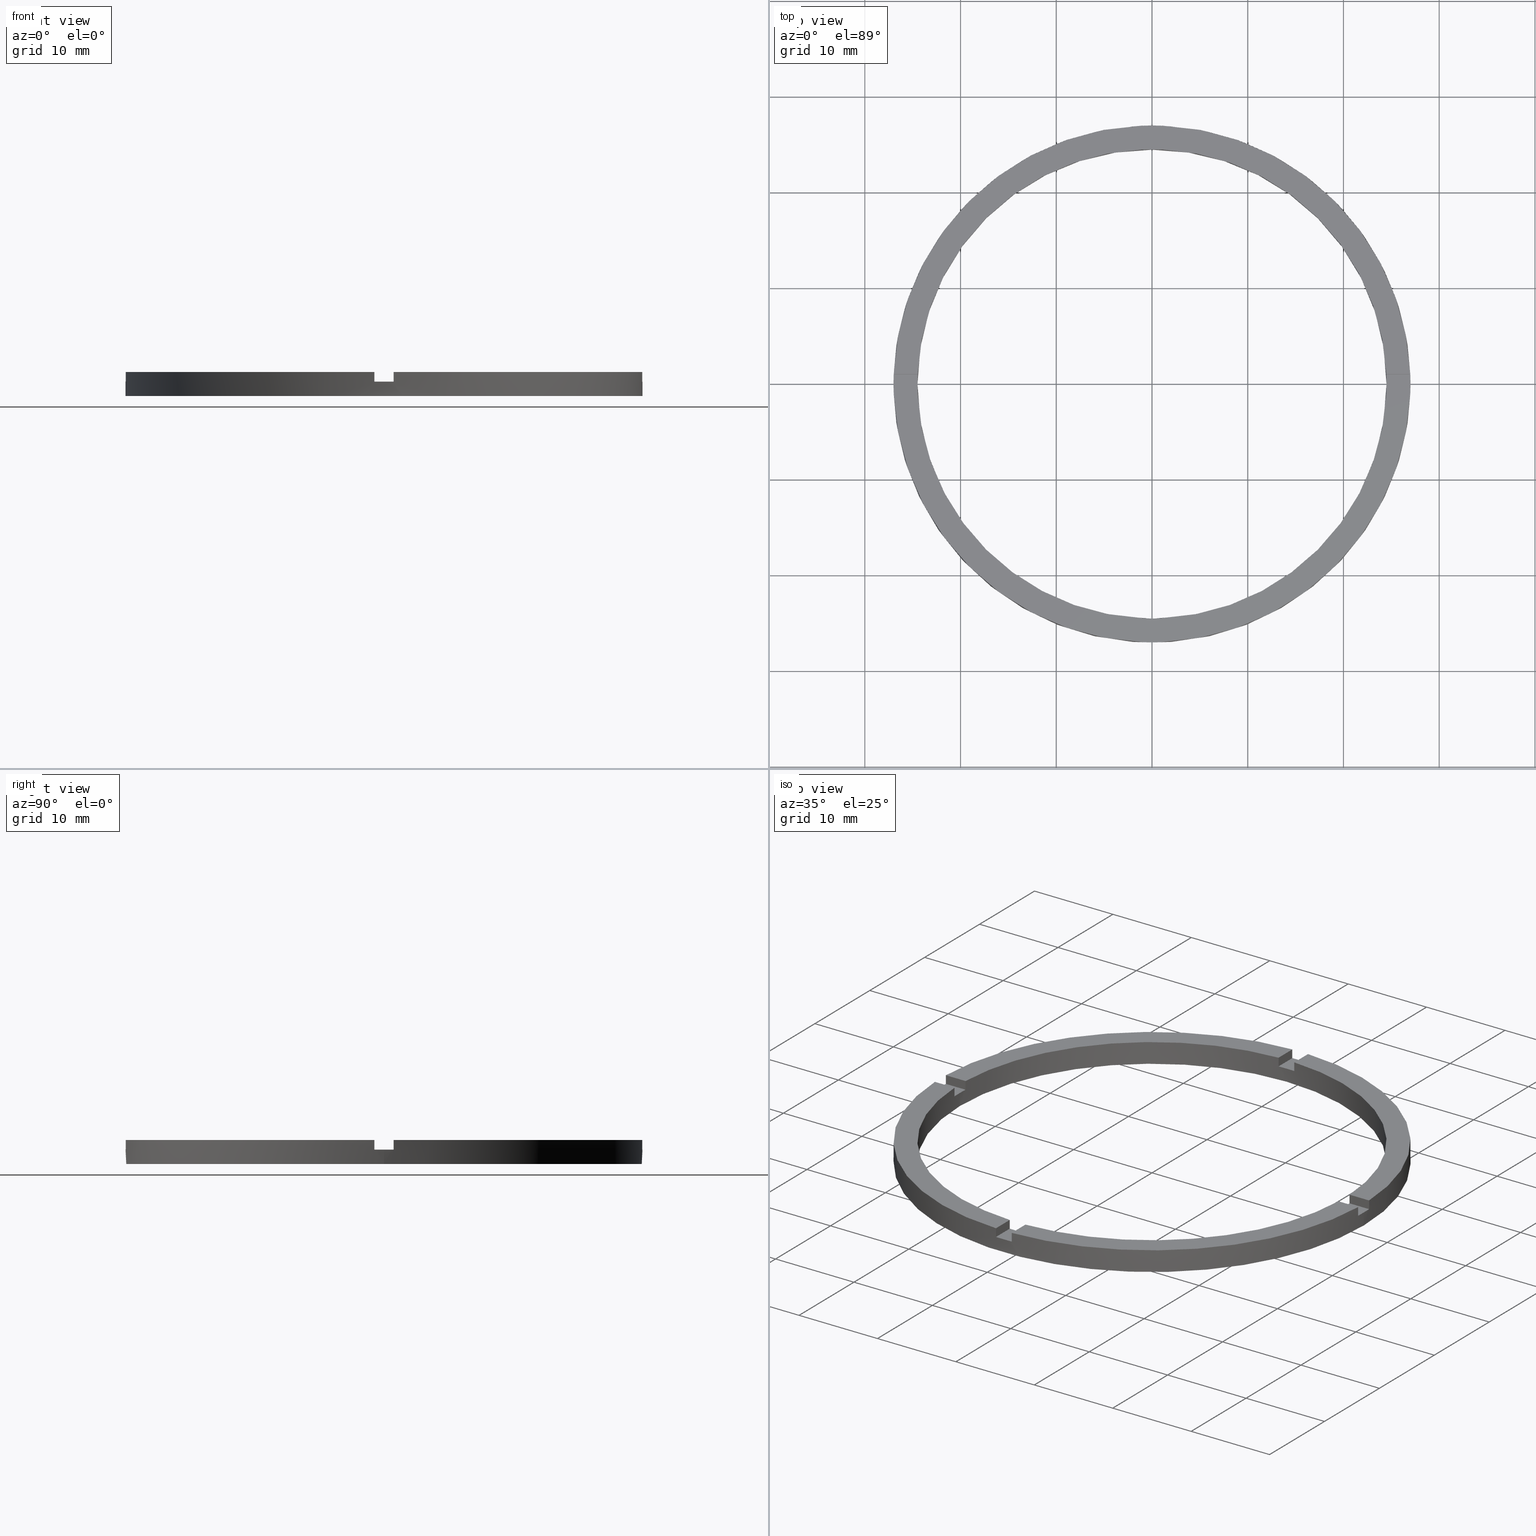
[diagram: canonical four-view strip — front | top / right | iso, engineering-drawing reading convention]
A machine part, canonical four-view strip (front | top / right | iso — engineering-drawing reading convention). The complete STEP part file that produces these views, byte-faithful:
ISO-10303-21;
HEADER;
FILE_DESCRIPTION (( 'STEP AP203' ),
    '1' );
FILE_NAME ('514113.step',
    '2024-12-26T02:38:45',
    ( 'MSI' ),
    ( '' ),
    'SwSTEP 2.0',
    'SolidWorks 2020',
    '' );
FILE_SCHEMA (( 'CONFIG_CONTROL_DESIGN' ));
ENDSEC;

DATA;
#1 = CARTESIAN_POINT ( 'NONE',  ( -24.47958332978729601, 0.9999999999999737987, 2.500000000000000000 ) ) ;
#2 = ORIENTED_EDGE ( 'NONE', *, *, #347, .F. ) ;
#3 = VERTEX_POINT ( 'NONE', #76 ) ;
#4 = CARTESIAN_POINT ( 'NONE',  ( 0.000000000000000000, 0.000000000000000000, 2.500000000000000000 ) ) ;
#5 = VERTEX_POINT ( 'NONE', #333 ) ;
#6 = CARTESIAN_POINT ( 'NONE',  ( 0.000000000000000000, 0.000000000000000000, 0.000000000000000000 ) ) ;
#7 = CARTESIAN_POINT ( 'NONE',  ( -1.000000000000026423, 26.98147512646407975, 2.500000000000000000 ) ) ;
#8 = CARTESIAN_POINT ( 'NONE',  ( 24.47958332978729956, 0.9999999999998427924, 2.500000000000000000 ) ) ;
#9 = ORIENTED_EDGE ( 'NONE', *, *, #588, .T. ) ;
#10 = ORIENTED_EDGE ( 'NONE', *, *, #378, .T. ) ;
#11 = ORIENTED_EDGE ( 'NONE', *, *, #317, .T. ) ;
#12 = CARTESIAN_POINT ( 'NONE',  ( -27.00000000000000000, 0.000000000000000000, 2.500000000000000000 ) ) ;
#13 = ORIENTED_EDGE ( 'NONE', *, *, #355, .T. ) ;
#14 = CARTESIAN_POINT ( 'NONE',  ( 0.000000000000000000, 0.000000000000000000, 2.500000000000000000 ) ) ;
#15 = ORIENTED_EDGE ( 'NONE', *, *, #700, .T. ) ;
#16 = CARTESIAN_POINT ( 'NONE',  ( -1.000000000000160094, -26.98147512646407620, 2.500000000000000000 ) ) ;
#17 = ADVANCED_FACE ( 'NONE', ( #561 ), #656, .T. ) ;
#18 = VERTEX_POINT ( 'NONE', #571 ) ;
#19 = ORIENTED_EDGE ( 'NONE', *, *, #266, .F. ) ;
#20 = CC_DESIGN_DATE_AND_TIME_ASSIGNMENT ( #221, #529, ( #334 ) ) ;
#21 = MECHANICAL_CONTEXT ( 'NONE', #580, 'mechanical' ) ;
#22 = VERTEX_POINT ( 'NONE', #744 ) ;
#23 = CARTESIAN_POINT ( 'NONE',  ( 24.47958332978729956, 0.9999999999998427924, 1.500000000000000000 ) ) ;
#24 = ORIENTED_EDGE ( 'NONE', *, *, #69, .T. ) ;
#25 = VERTEX_POINT ( 'NONE', #609 ) ;
#26 = ADVANCED_FACE ( 'NONE', ( #665 ), #114, .F. ) ;
#27 = ORIENTED_EDGE ( 'NONE', *, *, #388, .F. ) ;
#28 = EDGE_CURVE ( 'NONE', #682, #761, #154, .T. ) ;
#29 = DIRECTION ( 'NONE',  ( 1.000000000000000000, 4.336808689942018352E-17, 0.000000000000000000 ) ) ;
#30 = ORIENTED_EDGE ( 'NONE', *, *, #100, .T. ) ;
#31 = DIRECTION ( 'NONE',  ( 0.000000000000000000, -0.000000000000000000, 1.000000000000000000 ) ) ;
#32 = ORIENTED_EDGE ( 'NONE', *, *, #589, .F. ) ;
#33 = ORIENTED_EDGE ( 'NONE', *, *, #123, .F. ) ;
#34 = EDGE_CURVE ( 'NONE', #767, #765, #429, .T. ) ;
#35 = EDGE_LOOP ( 'NONE', ( #316, #11, #225, #311 ) ) ;
#36 = ADVANCED_FACE ( 'NONE', ( #150 ), #675, .F. ) ;
#37 = ORIENTED_EDGE ( 'NONE', *, *, #504, .T. ) ;
#38 = DIRECTION ( 'NONE',  ( 1.301042606982605567E-16, -1.000000000000000000, 0.000000000000000000 ) ) ;
#39 = PRODUCT_DEFINITION_FORMATION_WITH_SPECIFIED_SOURCE ( '�κ�', '', #337, .NOT_KNOWN. ) ;
#40 = ORIENTED_EDGE ( 'NONE', *, *, #34, .T. ) ;
#41 = EDGE_CURVE ( 'NONE', #81, #520, #416, .T. ) ;
#42 = ORIENTED_EDGE ( 'NONE', *, *, #649, .F. ) ;
#43 = DIRECTION ( 'NONE',  ( -1.000000000000000000, -4.336808689942017120E-17, -0.000000000000000000 ) ) ;
#44 = DIRECTION ( 'NONE',  ( 1.000000000000000000, 0.000000000000000000, -0.000000000000000000 ) ) ;
#45 = ORIENTED_EDGE ( 'NONE', *, *, #700, .F. ) ;
#46 =( GEOMETRIC_REPRESENTATION_CONTEXT ( 3 ) GLOBAL_UNCERTAINTY_ASSIGNED_CONTEXT ( ( #56 ) ) GLOBAL_UNIT_ASSIGNED_CONTEXT ( ( #657, #664, #756 ) ) REPRESENTATION_CONTEXT ( 'NONE', 'WORKASPACE' ) );
#47 = ORIENTED_EDGE ( 'NONE', *, *, #108, .T. ) ;
#48 = AXIS2_PLACEMENT_3D ( 'NONE', #248, #116, #275 ) ;
#49 = PERSON_AND_ORGANIZATION_ROLE ( 'design_supplier' ) ;
#50 = ADVANCED_FACE ( 'NONE', ( #437 ), #107, .T. ) ;
#51 = CARTESIAN_POINT ( 'NONE',  ( 0.000000000000000000, 0.000000000000000000, 1.500000000000000000 ) ) ;
#52 = AXIS2_PLACEMENT_3D ( 'NONE', #780, #70, #477 ) ;
#53 = DIRECTION ( 'NONE',  ( -1.301042606982605567E-16, 1.000000000000000000, 0.000000000000000000 ) ) ;
#54 = EDGE_CURVE ( 'NONE', #434, #279, #671, .T. ) ;
#55 = DIRECTION ( 'NONE',  ( -0.000000000000000000, -0.000000000000000000, -1.000000000000000000 ) ) ;
#56 = UNCERTAINTY_MEASURE_WITH_UNIT (LENGTH_MEASURE( 1.000000000000000082E-05 ), #657, 'distance_accuracy_value', 'NONE');
#57 = DIRECTION ( 'NONE',  ( 1.000000000000000000, 0.000000000000000000, 0.000000000000000000 ) ) ;
#58 = EDGE_CURVE ( 'NONE', #22, #308, #663, .T. ) ;
#59 = AXIS2_PLACEMENT_3D ( 'NONE', #393, #395, #635 ) ;
#60 = DIRECTION ( 'NONE',  ( 0.000000000000000000, 0.000000000000000000, 1.000000000000000000 ) ) ;
#61 = DIRECTION ( 'NONE',  ( 0.000000000000000000, 0.000000000000000000, 1.000000000000000000 ) ) ;
#62 = CARTESIAN_POINT ( 'NONE',  ( -17.00000000000018474, -1.000000000000024869, 1.500000000000000000 ) ) ;
#63 = DIRECTION ( 'NONE',  ( 0.000000000000000000, 1.000000000000000000, 0.000000000000000000 ) ) ;
#64 = DIRECTION ( 'NONE',  ( 1.000000000000000000, 0.000000000000000000, 0.000000000000000000 ) ) ;
#65 = DIRECTION ( 'NONE',  ( -1.000000000000000000, -4.336808689942017120E-17, -0.000000000000000000 ) ) ;
#66 = DIRECTION ( 'NONE',  ( -0.000000000000000000, 0.000000000000000000, 1.000000000000000000 ) ) ;
#67 = SECURITY_CLASSIFICATION ( '', '', #391 ) ;
#68 = DIRECTION ( 'NONE',  ( -0.000000000000000000, -0.000000000000000000, -1.000000000000000000 ) ) ;
#69 = EDGE_CURVE ( 'NONE', #761, #426, #421, .T. ) ;
#70 = DIRECTION ( 'NONE',  ( -4.336808689942017120E-17, 1.000000000000000000, 0.000000000000000000 ) ) ;
#71 = PLANE ( 'NONE',  #450 ) ;
#72 = AXIS2_PLACEMENT_3D ( 'NONE', #418, #159, #512 ) ;
#73 = PERSON_AND_ORGANIZATION_ROLE ( 'design_owner' ) ;
#74 = EDGE_CURVE ( 'NONE', #237, #239, #151, .T. ) ;
#75 = ADVANCED_FACE ( 'NONE', ( #130, #401 ), #367, .F. ) ;
#76 = CARTESIAN_POINT ( 'NONE',  ( 27.00000000000000000, 3.306546357697853733E-15, 0.000000000000000000 ) ) ;
#77 = CARTESIAN_POINT ( 'NONE',  ( 0.000000000000000000, 0.000000000000000000, 1.500000000000000000 ) ) ;
#78 = CARTESIAN_POINT ( 'NONE',  ( 0.000000000000000000, 0.000000000000000000, 1.500000000000000000 ) ) ;
#79 = AXIS2_PLACEMENT_3D ( 'NONE', #640, #270, #264 ) ;
#80 = DIRECTION ( 'NONE',  ( -1.000000000000000000, -1.301042606982605567E-16, 0.000000000000000000 ) ) ;
#81 = VERTEX_POINT ( 'NONE', #241 ) ;
#82 = ORIENTED_EDGE ( 'NONE', *, *, #649, .T. ) ;
#83 = DIRECTION ( 'NONE',  ( 0.000000000000000000, 0.000000000000000000, 1.000000000000000000 ) ) ;
#84 = CARTESIAN_POINT ( 'NONE',  ( -1.000000000000026423, 26.98147512646407975, 1.500000000000000000 ) ) ;
#85 = EDGE_LOOP ( 'NONE', ( #508, #247, #505, #538, #33, #277 ) ) ;
#86 = PERSON_AND_ORGANIZATION ( #559, #489 ) ;
#87 = CARTESIAN_POINT ( 'NONE',  ( 0.9999999999998397948, -24.47958332978729956, 1.500000000000000000 ) ) ;
#88 = CARTESIAN_POINT ( 'NONE',  ( -1.000000000000026423, 17.00000000000000000, 1.500000000000000000 ) ) ;
#89 = APPROVAL_ROLE ( '' ) ;
#90 = LOCAL_TIME ( 10, 38, 45.00000000000000000, #369 ) ;
#91 = DIRECTION ( 'NONE',  ( 0.000000000000000000, -0.000000000000000000, 1.000000000000000000 ) ) ;
#92 = PERSON_AND_ORGANIZATION_ROLE ( 'classification_officer' ) ;
#93 = APPROVAL_DATE_TIME ( #614, #683 ) ;
#94 = CC_DESIGN_SECURITY_CLASSIFICATION ( #67, ( #39 ) ) ;
#95 = CALENDAR_DATE ( 2024, 26, 12 ) ;
#96 = CARTESIAN_POINT ( 'NONE',  ( -17.00000000000018474, 0.9999999999999751310, 1.500000000000000000 ) ) ;
#97 = DIRECTION ( 'NONE',  ( 0.000000000000000000, 0.000000000000000000, 1.000000000000000000 ) ) ;
#98 = LOCAL_TIME ( 10, 38, 45.00000000000000000, #623 ) ;
#99 = PERSON_AND_ORGANIZATION ( #559, #489 ) ;
#100 = EDGE_CURVE ( 'NONE', #760, #484, #144, .T. ) ;
#101 = CALENDAR_DATE ( 2024, 26, 12 ) ;
#102 = DIRECTION ( 'NONE',  ( 1.000000000000000000, 0.000000000000000000, 0.000000000000000000 ) ) ;
#103 = CARTESIAN_POINT ( 'NONE',  ( 24.50000000000000000, 3.000384657911015469E-15, 0.000000000000000000 ) ) ;
#104 = AXIS2_PLACEMENT_3D ( 'NONE', #698, #398, #548 ) ;
#105 = PLANE ( 'NONE',  #586 ) ;
#106 = PLANE ( 'NONE',  #542 ) ;
#107 = PLANE ( 'NONE',  #460 ) ;
#108 = EDGE_CURVE ( 'NONE', #462, #217, #406, .T. ) ;
#109 = EDGE_CURVE ( 'NONE', #239, #434, #424, .T. ) ;
#110 = CARTESIAN_POINT ( 'NONE',  ( -24.47958332978729601, -1.000000000000026201, 2.500000000000000000 ) ) ;
#111 = CARTESIAN_POINT ( 'NONE',  ( -24.47958332978729601, -1.000000000000026201, 1.500000000000000000 ) ) ;
#112 = DIRECTION ( 'NONE',  ( 1.000000000000000000, 0.000000000000000000, 0.000000000000000000 ) ) ;
#113 = CARTESIAN_POINT ( 'NONE',  ( 16.99999999999999645, -1.000000000000157652, 2.500000000000000000 ) ) ;
#114 = PLANE ( 'NONE',  #59 ) ;
#115 = AXIS2_PLACEMENT_3D ( 'NONE', #380, #610, #573 ) ;
#116 = DIRECTION ( 'NONE',  ( 0.000000000000000000, 0.000000000000000000, 1.000000000000000000 ) ) ;
#117 = DIRECTION ( 'NONE',  ( -0.000000000000000000, 0.000000000000000000, 1.000000000000000000 ) ) ;
#118 = CARTESIAN_POINT ( 'NONE',  ( 24.50000000000000000, 3.000384657911015469E-15, 2.500000000000000000 ) ) ;
#119 = ADVANCED_FACE ( 'NONE', ( #145 ), #318, .T. ) ;
#120 = DIRECTION ( 'NONE',  ( 1.000000000000000000, 0.000000000000000000, 0.000000000000000000 ) ) ;
#121 = AXIS2_PLACEMENT_3D ( 'NONE', #136, #475, #57 ) ;
#122 = CARTESIAN_POINT ( 'NONE',  ( -26.98147512646408330, 0.9999999999999733546, 2.500000000000000000 ) ) ;
#123 = EDGE_CURVE ( 'NONE', #742, #760, #408, .T. ) ;
#124 = CARTESIAN_POINT ( 'NONE',  ( 0.000000000000000000, 0.000000000000000000, 1.500000000000000000 ) ) ;
#125 = ADVANCED_FACE ( 'NONE', ( #139 ), #105, .T. ) ;
#126 = VECTOR ( 'NONE', #564, 1000.000000000000000 ) ;
#127 = CIRCLE ( 'NONE', #165, 27.00000000000000000 ) ;
#128 = EDGE_CURVE ( 'NONE', #462, #5, #129, .T. ) ;
#129 = LINE ( 'NONE', #629, #684 ) ;
#130 = FACE_OUTER_BOUND ( 'NONE', #516, .T. ) ;
#131 = VECTOR ( 'NONE', #390, 1000.000000000000000 ) ;
#132 = EDGE_CURVE ( 'NONE', #742, #291, #143, .T. ) ;
#133 = CYLINDRICAL_SURFACE ( 'NONE', #310, 27.00000000000000000 ) ;
#134 = CARTESIAN_POINT ( 'NONE',  ( 0.9999999999998386846, -17.00000000000018119, 1.500000000000000000 ) ) ;
#135 = VECTOR ( 'NONE', #686, 1000.000000000000000 ) ;
#136 = CARTESIAN_POINT ( 'NONE',  ( 0.000000000000000000, 0.000000000000000000, 1.500000000000000000 ) ) ;
#137 = FACE_OUTER_BOUND ( 'NONE', #353, .T. ) ;
#138 = CC_DESIGN_PERSON_AND_ORGANIZATION_ASSIGNMENT ( #99, #92, ( #67 ) ) ;
#139 = FACE_OUTER_BOUND ( 'NONE', #754, .T. ) ;
#140 = DIRECTION ( 'NONE',  ( -1.000000000000000000, -1.734723475976807341E-16, 0.000000000000000000 ) ) ;
#141 = LINE ( 'NONE', #775, #415 ) ;
#142 = PLANE ( 'NONE',  #48 ) ;
#143 = LINE ( 'NONE', #774, #166 ) ;
#144 = CIRCLE ( 'NONE', #423, 24.50000000000000000 ) ;
#145 = FACE_OUTER_BOUND ( 'NONE', #85, .T. ) ;
#146 = AXIS2_PLACEMENT_3D ( 'NONE', #77, #420, #181 ) ;
#147 = CARTESIAN_POINT ( 'NONE',  ( 0.000000000000000000, 0.000000000000000000, 1.500000000000000000 ) ) ;
#148 = VECTOR ( 'NONE', #160, 1000.000000000000000 ) ;
#149 = CARTESIAN_POINT ( 'NONE',  ( 0.000000000000000000, 0.000000000000000000, 2.500000000000000000 ) ) ;
#150 = FACE_OUTER_BOUND ( 'NONE', #674, .T. ) ;
#151 = LINE ( 'NONE', #772, #126 ) ;
#152 = DIRECTION ( 'NONE',  ( 1.000000000000000000, 0.000000000000000000, 0.000000000000000000 ) ) ;
#153 = EDGE_CURVE ( 'NONE', #239, #484, #168, .T. ) ;
#154 = LINE ( 'NONE', #348, #667 ) ;
#155 = DIRECTION ( 'NONE',  ( 0.000000000000000000, 0.000000000000000000, 1.000000000000000000 ) ) ;
#156 = LINE ( 'NONE', #7, #148 ) ;
#157 = ORIENTED_EDGE ( 'NONE', *, *, #432, .F. ) ;
#158 = PRODUCT_DEFINITION_SHAPE ( 'NONE', 'NONE',  #334 ) ;
#159 = DIRECTION ( 'NONE',  ( -1.734723475976807341E-16, 1.000000000000000000, 0.000000000000000000 ) ) ;
#160 = DIRECTION ( 'NONE',  ( -0.000000000000000000, -0.000000000000000000, -1.000000000000000000 ) ) ;
#161 = LINE ( 'NONE', #62, #660 ) ;
#162 = VERTEX_POINT ( 'NONE', #363 ) ;
#163 = VECTOR ( 'NONE', #232, 1000.000000000000000 ) ;
#164 = EDGE_LOOP ( 'NONE', ( #472, #169, #351, #466 ) ) ;
#165 = AXIS2_PLACEMENT_3D ( 'NONE', #590, #320, #711 ) ;
#166 = VECTOR ( 'NONE', #155, 1000.000000000000000 ) ;
#167 = ORIENTED_EDGE ( 'NONE', *, *, #28, .F. ) ;
#168 = LINE ( 'NONE', #261, #400 ) ;
#169 = ORIENTED_EDGE ( 'NONE', *, *, #523, .T. ) ;
#170 = CARTESIAN_POINT ( 'NONE',  ( 0.9999999999998397948, -24.47958332978729956, 2.500000000000000000 ) ) ;
#171 = CARTESIAN_POINT ( 'NONE',  ( 0.9999999999999735767, 26.98147512646408330, 2.500000000000000000 ) ) ;
#172 = LINE ( 'NONE', #122, #198 ) ;
#173 = LINE ( 'NONE', #576, #443 ) ;
#174 = EDGE_CURVE ( 'NONE', #25, #434, #672, .T. ) ;
#175 = CARTESIAN_POINT ( 'NONE',  ( 0.9999999999998397948, -24.47958332978729956, 2.500000000000000000 ) ) ;
#176 = LINE ( 'NONE', #12, #697 ) ;
#177 = DIRECTION ( 'NONE',  ( 1.000000000000000000, 0.000000000000000000, 0.000000000000000000 ) ) ;
#178 = VECTOR ( 'NONE', #642, 1000.000000000000000 ) ;
#179 = CARTESIAN_POINT ( 'NONE',  ( 27.00000000000000000, 3.306546357697853733E-15, 1.500000000000000000 ) ) ;
#180 = LINE ( 'NONE', #631, #182 ) ;
#181 = DIRECTION ( 'NONE',  ( 1.000000000000000000, 0.000000000000000000, 0.000000000000000000 ) ) ;
#182 = VECTOR ( 'NONE', #404, 1000.000000000000000 ) ;
#183 = AXIS2_PLACEMENT_3D ( 'NONE', #405, #495, #717 ) ;
#184 = VECTOR ( 'NONE', #267, 1000.000000000000000 ) ;
#185 = ADVANCED_FACE ( 'NONE', ( #658 ), #133, .T. ) ;
#186 = DIRECTION ( 'NONE',  ( 1.000000000000000000, 0.000000000000000000, -0.000000000000000000 ) ) ;
#187 = CIRCLE ( 'NONE', #645, 27.00000000000000000 ) ;
#188 = DIRECTION ( 'NONE',  ( 0.000000000000000000, 0.000000000000000000, 1.000000000000000000 ) ) ;
#189 = CIRCLE ( 'NONE', #327, 24.50000000000000000 ) ;
#190 = EDGE_CURVE ( 'NONE', #742, #162, #427, .T. ) ;
#191 = LINE ( 'NONE', #600, #178 ) ;
#192 = LINE ( 'NONE', #118, #693 ) ;
#193 = CARTESIAN_POINT ( 'NONE',  ( 0.9999999999998400169, -26.98147512646408686, 2.500000000000000000 ) ) ;
#194 = CIRCLE ( 'NONE', #386, 27.00000000000000000 ) ;
#195 = DIRECTION ( 'NONE',  ( 1.000000000000000000, 0.000000000000000000, 0.000000000000000000 ) ) ;
#196 = CIRCLE ( 'NONE', #625, 27.00000000000000000 ) ;
#197 = EDGE_CURVE ( 'NONE', #25, #515, #651, .T. ) ;
#198 = VECTOR ( 'NONE', #204, 1000.000000000000000 ) ;
#199 = LINE ( 'NONE', #510, #446 ) ;
#200 = CC_DESIGN_DATE_AND_TIME_ASSIGNMENT ( #615, #299, ( #67 ) ) ;
#201 = DIRECTION ( 'NONE',  ( 0.000000000000000000, -0.000000000000000000, 1.000000000000000000 ) ) ;
#202 = VECTOR ( 'NONE', #272, 1000.000000000000000 ) ;
#203 = ORIENTED_EDGE ( 'NONE', *, *, #630, .F. ) ;
#204 = DIRECTION ( 'NONE',  ( 0.000000000000000000, 0.000000000000000000, 1.000000000000000000 ) ) ;
#205 = FACE_OUTER_BOUND ( 'NONE', #35, .T. ) ;
#206 = EDGE_CURVE ( 'NONE', #558, #484, #161, .T. ) ;
#207 = ORIENTED_EDGE ( 'NONE', *, *, #565, .F. ) ;
#208 = LOCAL_TIME ( 10, 38, 45.00000000000000000, #470 ) ;
#209 = CIRCLE ( 'NONE', #695, 27.00000000000000000 ) ;
#210 = ORIENTED_EDGE ( 'NONE', *, *, #523, .F. ) ;
#211 = LOCAL_TIME ( 10, 38, 45.00000000000000000, #752 ) ;
#212 = CC_DESIGN_PERSON_AND_ORGANIZATION_ASSIGNMENT ( #486, #574, ( #334 ) ) ;
#213 = LINE ( 'NONE', #716, #713 ) ;
#214 = VERTEX_POINT ( 'NONE', #103 ) ;
#215 = CARTESIAN_POINT ( 'NONE',  ( 26.98147512646408686, 0.9999999999998427924, 2.500000000000000000 ) ) ;
#216 = LINE ( 'NONE', #16, #202 ) ;
#217 = VERTEX_POINT ( 'NONE', #602 ) ;
#218 = AXIS2_PLACEMENT_3D ( 'NONE', #371, #412, #619 ) ;
#219 = LINE ( 'NONE', #447, #451 ) ;
#220 = ORIENTED_EDGE ( 'NONE', *, *, #518, .T. ) ;
#221 = DATE_AND_TIME ( #730, #211 ) ;
#222 = ORIENTED_EDGE ( 'NONE', *, *, #496, .T. ) ;
#223 = ORIENTED_EDGE ( 'NONE', *, *, #572, .T. ) ;
#224 = PERSON_AND_ORGANIZATION ( #559, #489 ) ;
#225 = ORIENTED_EDGE ( 'NONE', *, *, #432, .T. ) ;
#226 = LOCAL_TIME ( 10, 38, 45.00000000000000000, #741 ) ;
#227 = ORIENTED_EDGE ( 'NONE', *, *, #108, .F. ) ;
#228 = CALENDAR_DATE ( 2024, 26, 12 ) ;
#229 = EDGE_LOOP ( 'NONE', ( #314, #563, #567, #231 ) ) ;
#230 = APPROVAL_DATE_TIME ( #482, #269 ) ;
#231 = ORIENTED_EDGE ( 'NONE', *, *, #197, .T. ) ;
#232 = DIRECTION ( 'NONE',  ( -1.301042606982605567E-16, 1.000000000000000000, -0.000000000000000000 ) ) ;
#233 = APPROVAL_STATUS ( 'not_yet_approved' ) ;
#234 = DIRECTION ( 'NONE',  ( 0.000000000000000000, 0.000000000000000000, 1.000000000000000000 ) ) ;
#235 = ORIENTED_EDGE ( 'NONE', *, *, #322, .F. ) ;
#236 = ORIENTED_EDGE ( 'NONE', *, *, #776, .F. ) ;
#237 = VERTEX_POINT ( 'NONE', #326 ) ;
#238 = EDGE_CURVE ( 'NONE', #296, #18, #678, .T. ) ;
#239 = VERTEX_POINT ( 'NONE', #110 ) ;
#240 = CARTESIAN_POINT ( 'NONE',  ( 0.000000000000000000, 0.000000000000000000, 2.500000000000000000 ) ) ;
#241 = CARTESIAN_POINT ( 'NONE',  ( 26.98147512646407620, -1.000000000000157208, 1.500000000000000000 ) ) ;
#242 = ORIENTED_EDGE ( 'NONE', *, *, #54, .F. ) ;
#243 = ORIENTED_EDGE ( 'NONE', *, *, #582, .T. ) ;
#244 = ORIENTED_EDGE ( 'NONE', *, *, #322, .T. ) ;
#245 = CARTESIAN_POINT ( 'NONE',  ( -1.000000000000161426, -17.00000000000018119, 1.500000000000000000 ) ) ;
#246 = EDGE_CURVE ( 'NONE', #214, #297, #654, .T. ) ;
#247 = ORIENTED_EDGE ( 'NONE', *, *, #724, .T. ) ;
#248 = CARTESIAN_POINT ( 'NONE',  ( 0.000000000000000000, 0.000000000000000000, 2.500000000000000000 ) ) ;
#249 = AXIS2_PLACEMENT_3D ( 'NONE', #771, #552, #670 ) ;
#250 = VERTEX_POINT ( 'NONE', #407 ) ;
#251 = ORIENTED_EDGE ( 'NONE', *, *, #123, .T. ) ;
#252 = VERTEX_POINT ( 'NONE', #506 ) ;
#253 = CARTESIAN_POINT ( 'NONE',  ( 0.9999999999999735767, 24.47958332978729601, 2.500000000000000000 ) ) ;
#254 = EDGE_CURVE ( 'NONE', #515, #22, #410, .T. ) ;
#255 = ORIENTED_EDGE ( 'NONE', *, *, #588, .F. ) ;
#256 = DIRECTION ( 'NONE',  ( -0.000000000000000000, -0.000000000000000000, -1.000000000000000000 ) ) ;
#257 = DIRECTION ( 'NONE',  ( -1.000000000000000000, 0.000000000000000000, 0.000000000000000000 ) ) ;
#258 = ORIENTED_EDGE ( 'NONE', *, *, #132, .F. ) ;
#259 = DIRECTION ( 'NONE',  ( 1.000000000000000000, 0.000000000000000000, 0.000000000000000000 ) ) ;
#260 = EDGE_LOOP ( 'NONE', ( #551, #430, #167, #222 ) ) ;
#261 = CARTESIAN_POINT ( 'NONE',  ( -24.47958332978729601, -1.000000000000026201, 2.500000000000000000 ) ) ;
#262 = CARTESIAN_POINT ( 'NONE',  ( 0.000000000000000000, 0.000000000000000000, 2.500000000000000000 ) ) ;
#263 = CC_DESIGN_PERSON_AND_ORGANIZATION_ASSIGNMENT ( #611, #626, ( #39 ) ) ;
#264 = DIRECTION ( 'NONE',  ( 1.000000000000000000, 0.000000000000000000, 0.000000000000000000 ) ) ;
#265 = ADVANCED_BREP_SHAPE_REPRESENTATION ( '514113', ( #579, #409 ), #46 ) ;
#266 = EDGE_CURVE ( 'NONE', #763, #520, #662, .T. ) ;
#267 = DIRECTION ( 'NONE',  ( -0.000000000000000000, -0.000000000000000000, -1.000000000000000000 ) ) ;
#268 = CARTESIAN_POINT ( 'NONE',  ( 26.98147512646407620, -1.000000000000157208, 2.500000000000000000 ) ) ;
#269 = APPROVAL ( #422, 'δָ��' ) ;
#270 = DIRECTION ( 'NONE',  ( 0.000000000000000000, 0.000000000000000000, 1.000000000000000000 ) ) ;
#271 = DIRECTION ( 'NONE',  ( 1.000000000000000000, 1.734723475976807341E-16, 0.000000000000000000 ) ) ;
#272 = DIRECTION ( 'NONE',  ( 0.000000000000000000, 0.000000000000000000, 1.000000000000000000 ) ) ;
#273 = APPLICATION_CONTEXT ( 'configuration controlled 3d designs of mechanical parts and assemblies' ) ;
#274 = DIRECTION ( 'NONE',  ( 1.000000000000000000, 0.000000000000000000, 0.000000000000000000 ) ) ;
#275 = DIRECTION ( 'NONE',  ( 1.000000000000000000, 0.000000000000000000, -0.000000000000000000 ) ) ;
#276 = ORIENTED_EDGE ( 'NONE', *, *, #370, .F. ) ;
#277 = ORIENTED_EDGE ( 'NONE', *, *, #190, .T. ) ;
#278 = DIRECTION ( 'NONE',  ( -0.000000000000000000, -0.000000000000000000, -1.000000000000000000 ) ) ;
#279 = VERTEX_POINT ( 'NONE', #596 ) ;
#280 = CARTESIAN_POINT ( 'NONE',  ( 26.98147512646408686, 0.9999999999998427924, 2.500000000000000000 ) ) ;
#281 = VERTEX_POINT ( 'NONE', #703 ) ;
#282 = AXIS2_PLACEMENT_3D ( 'NONE', #731, #377, #514 ) ;
#283 = VERTEX_POINT ( 'NONE', #175 ) ;
#284 = ADVANCED_FACE ( 'NONE', ( #431 ), #636, .F. ) ;
#285 = ORIENTED_EDGE ( 'NONE', *, *, #375, .T. ) ;
#286 = CARTESIAN_POINT ( 'NONE',  ( 0.000000000000000000, 0.000000000000000000, 1.500000000000000000 ) ) ;
#287 = ORIENTED_EDGE ( 'NONE', *, *, #706, .F. ) ;
#288 = CARTESIAN_POINT ( 'NONE',  ( 0.9999999999999735767, 17.00000000000000000, 2.500000000000000000 ) ) ;
#289 = EDGE_LOOP ( 'NONE', ( #556, #541, #307, #745 ) ) ;
#290 = EDGE_CURVE ( 'NONE', #250, #3, #127, .T. ) ;
#291 = VERTEX_POINT ( 'NONE', #1 ) ;
#292 = ORIENTED_EDGE ( 'NONE', *, *, #206, .F. ) ;
#293 = ADVANCED_FACE ( 'NONE', ( #137 ), #676, .F. ) ;
#294 = DIRECTION ( 'NONE',  ( 0.000000000000000000, 0.000000000000000000, 1.000000000000000000 ) ) ;
#295 = ORIENTED_EDGE ( 'NONE', *, *, #28, .T. ) ;
#296 = VERTEX_POINT ( 'NONE', #778 ) ;
#297 = VERTEX_POINT ( 'NONE', #392 ) ;
#298 = ORIENTED_EDGE ( 'NONE', *, *, #74, .T. ) ;
#299 = DATE_TIME_ROLE ( 'classification_date' ) ;
#300 = ORIENTED_EDGE ( 'NONE', *, *, #496, .F. ) ;
#301 = ADVANCED_FACE ( 'NONE', ( #669 ), #766, .T. ) ;
#302 = AXIS2_PLACEMENT_3D ( 'NONE', #782, #605, #64 ) ;
#303 = EDGE_LOOP ( 'NONE', ( #755, #47, #566, #276 ) ) ;
#304 = EDGE_LOOP ( 'NONE', ( #235, #345, #285, #540, #236, #9, #210, #688, #287, #598, #300, #606 ) ) ;
#305 = ORIENTED_EDGE ( 'NONE', *, *, #528, .T. ) ;
#306 = ORIENTED_EDGE ( 'NONE', *, *, #396, .T. ) ;
#307 = ORIENTED_EDGE ( 'NONE', *, *, #54, .T. ) ;
#308 = VERTEX_POINT ( 'NONE', #87 ) ;
#309 = ORIENTED_EDGE ( 'NONE', *, *, #724, .F. ) ;
#310 = AXIS2_PLACEMENT_3D ( 'NONE', #555, #55, #597 ) ;
#311 = ORIENTED_EDGE ( 'NONE', *, *, #41, .F. ) ;
#312 = PLANE ( 'NONE',  #357 ) ;
#313 = ORIENTED_EDGE ( 'NONE', *, *, #706, .T. ) ;
#314 = ORIENTED_EDGE ( 'NONE', *, *, #254, .T. ) ;
#315 = DIRECTION ( 'NONE',  ( 1.301042606982605567E-16, -1.000000000000000000, 0.000000000000000000 ) ) ;
#316 = ORIENTED_EDGE ( 'NONE', *, *, #689, .F. ) ;
#317 = EDGE_CURVE ( 'NONE', #296, #544, #141, .T. ) ;
#318 = PLANE ( 'NONE',  #632 ) ;
#319 = CARTESIAN_POINT ( 'NONE',  ( 0.9999999999998386846, -17.00000000000018119, 2.500000000000000000 ) ) ;
#320 = DIRECTION ( 'NONE',  ( 0.000000000000000000, 0.000000000000000000, 1.000000000000000000 ) ) ;
#321 = DIRECTION ( 'NONE',  ( -0.000000000000000000, -0.000000000000000000, -1.000000000000000000 ) ) ;
#322 = EDGE_CURVE ( 'NONE', #487, #560, #666, .T. ) ;
#323 = DIRECTION ( 'NONE',  ( 0.000000000000000000, 0.000000000000000000, 1.000000000000000000 ) ) ;
#324 = CARTESIAN_POINT ( 'NONE',  ( -1.000000000000161426, -17.00000000000018119, 2.500000000000000000 ) ) ;
#325 = DIRECTION ( 'NONE',  ( -0.000000000000000000, -0.000000000000000000, -1.000000000000000000 ) ) ;
#326 = CARTESIAN_POINT ( 'NONE',  ( -26.98147512646407975, -1.000000000000026645, 2.500000000000000000 ) ) ;
#327 = AXIS2_PLACEMENT_3D ( 'NONE', #652, #31, #195 ) ;
#328 = DIRECTION ( 'NONE',  ( 1.000000000000000000, 4.336808689942018352E-17, 0.000000000000000000 ) ) ;
#329 = CARTESIAN_POINT ( 'NONE',  ( 0.000000000000000000, 0.000000000000000000, 1.500000000000000000 ) ) ;
#330 = DIRECTION ( 'NONE',  ( 1.000000000000000000, 1.734723475976807341E-16, -0.000000000000000000 ) ) ;
#331 = PLANE ( 'NONE',  #643 ) ;
#332 = DIRECTION ( 'NONE',  ( 4.336808689942018352E-17, -1.000000000000000000, 0.000000000000000000 ) ) ;
#333 = CARTESIAN_POINT ( 'NONE',  ( 0.9999999999999735767, 26.98147512646408330, 1.500000000000000000 ) ) ;
#334 = PRODUCT_DEFINITION ( 'δ֪', '', #39, #581 ) ;
#335 = CARTESIAN_POINT ( 'NONE',  ( 0.000000000000000000, 0.000000000000000000, 2.500000000000000000 ) ) ;
#336 = ADVANCED_FACE ( 'NONE', ( #419 ), #312, .F. ) ;
#337 = PRODUCT ( '514113', '514113', '', ( #21 ) ) ;
#338 = AXIS2_PLACEMENT_3D ( 'NONE', #6, #634, #570 ) ;
#339 = APPLICATION_PROTOCOL_DEFINITION ( 'international standard', 'config_control_design', 1994, #273 ) ;
#340 = DIRECTION ( 'NONE',  ( -0.000000000000000000, -1.000000000000000000, -0.000000000000000000 ) ) ;
#341 = CARTESIAN_POINT ( 'NONE',  ( 0.000000000000000000, 0.000000000000000000, 1.500000000000000000 ) ) ;
#342 = PLANE ( 'NONE',  #584 ) ;
#343 = AXIS2_PLACEMENT_3D ( 'NONE', #124, #234, #44 ) ;
#344 = CARTESIAN_POINT ( 'NONE',  ( -24.47958332978729601, 0.9999999999999737987, 1.500000000000000000 ) ) ;
#345 = ORIENTED_EDGE ( 'NONE', *, *, #440, .T. ) ;
#346 = CARTESIAN_POINT ( 'NONE',  ( -26.98147512646408330, 0.9999999999999733546, 2.500000000000000000 ) ) ;
#347 = EDGE_CURVE ( 'NONE', #281, #767, #156, .T. ) ;
#348 = CARTESIAN_POINT ( 'NONE',  ( 16.99999999999999289, 0.9999999999998423483, 2.500000000000000000 ) ) ;
#349 = EDGE_CURVE ( 'NONE', #547, #291, #680, .T. ) ;
#350 = ORIENTED_EDGE ( 'NONE', *, *, #109, .T. ) ;
#351 = ORIENTED_EDGE ( 'NONE', *, *, #355, .F. ) ;
#352 = ORIENTED_EDGE ( 'NONE', *, *, #565, .T. ) ;
#353 = EDGE_LOOP ( 'NONE', ( #32, #82, #757, #243, #227, #781, #499, #478, #258, #251, #306, #748 ) ) ;
#354 = APPROVAL ( #233, 'δָ��' ) ;
#355 = EDGE_CURVE ( 'NONE', #291, #725, #180, .T. ) ;
#356 = AXIS2_PLACEMENT_3D ( 'NONE', #749, #201, #177 ) ;
#357 = AXIS2_PLACEMENT_3D ( 'NONE', #594, #361, #53 ) ;
#358 = CARTESIAN_POINT ( 'NONE',  ( 0.000000000000000000, 0.000000000000000000, 0.000000000000000000 ) ) ;
#359 = DIRECTION ( 'NONE',  ( 0.000000000000000000, 0.000000000000000000, 1.000000000000000000 ) ) ;
#360 = DIRECTION ( 'NONE',  ( -0.000000000000000000, -0.000000000000000000, -1.000000000000000000 ) ) ;
#361 = DIRECTION ( 'NONE',  ( 1.000000000000000000, 1.301042606982605567E-16, 0.000000000000000000 ) ) ;
#362 = APPROVAL_DATE_TIME ( #618, #354 ) ;
#363 = CARTESIAN_POINT ( 'NONE',  ( -26.98147512646408330, 0.9999999999999733546, 1.500000000000000000 ) ) ;
#364 = DIRECTION ( 'NONE',  ( 1.000000000000000000, 0.000000000000000000, -0.000000000000000000 ) ) ;
#365 = DIRECTION ( 'NONE',  ( 1.000000000000000000, 0.000000000000000000, 0.000000000000000000 ) ) ;
#366 = AXIS2_PLACEMENT_3D ( 'NONE', #498, #414, #720 ) ;
#367 = PLANE ( 'NONE',  #183 ) ;
#368 = SHAPE_DEFINITION_REPRESENTATION ( #158, #265 ) ;
#369 = COORDINATED_UNIVERSAL_TIME_OFFSET ( 8, 0, .AHEAD. ) ;
#370 = EDGE_CURVE ( 'NONE', #5, #530, #705, .T. ) ;
#371 = CARTESIAN_POINT ( 'NONE',  ( 0.000000000000000000, 0.000000000000000000, 2.500000000000000000 ) ) ;
#372 = DIRECTION ( 'NONE',  ( 0.000000000000000000, 0.000000000000000000, 1.000000000000000000 ) ) ;
#373 = CARTESIAN_POINT ( 'NONE',  ( 0.000000000000000000, 0.000000000000000000, 1.500000000000000000 ) ) ;
#374 = ADVANCED_FACE ( 'NONE', ( #439 ), #142, .T. ) ;
#375 = EDGE_CURVE ( 'NONE', #3, #250, #721, .T. ) ;
#376 = CARTESIAN_POINT ( 'NONE',  ( 0.000000000000000000, 0.000000000000000000, 2.500000000000000000 ) ) ;
#377 = DIRECTION ( 'NONE',  ( -0.000000000000000000, -0.000000000000000000, -1.000000000000000000 ) ) ;
#378 = EDGE_CURVE ( 'NONE', #25, #308, #465, .T. ) ;
#379 = CARTESIAN_POINT ( 'NONE',  ( 16.99999999999999645, -1.000000000000157652, 1.500000000000000000 ) ) ;
#380 = CARTESIAN_POINT ( 'NONE',  ( 0.000000000000000000, 0.000000000000000000, 0.000000000000000000 ) ) ;
#381 = DIRECTION ( 'NONE',  ( -0.000000000000000000, -0.000000000000000000, -1.000000000000000000 ) ) ;
#382 = PRODUCT_RELATED_PRODUCT_CATEGORY ( 'detail', '', ( #337 ) ) ;
#383 = EDGE_CURVE ( 'NONE', #515, #279, #216, .T. ) ;
#384 = CARTESIAN_POINT ( 'NONE',  ( 0.000000000000000000, 0.000000000000000000, 2.500000000000000000 ) ) ;
#385 = AXIS2_PLACEMENT_3D ( 'NONE', #286, #621, #442 ) ;
#386 = AXIS2_PLACEMENT_3D ( 'NONE', #335, #648, #746 ) ;
#387 = DIRECTION ( 'NONE',  ( -0.000000000000000000, -0.000000000000000000, -1.000000000000000000 ) ) ;
#388 = EDGE_CURVE ( 'NONE', #237, #279, #194, .T. ) ;
#389 = ADVANCED_FACE ( 'NONE', ( #205 ), #71, .F. ) ;
#390 = DIRECTION ( 'NONE',  ( -0.000000000000000000, -1.000000000000000000, -0.000000000000000000 ) ) ;
#391 = SECURITY_CLASSIFICATION_LEVEL ( 'unclassified' ) ;
#392 = CARTESIAN_POINT ( 'NONE',  ( -24.50000000000000000, 0.000000000000000000, 0.000000000000000000 ) ) ;
#393 = CARTESIAN_POINT ( 'NONE',  ( 0.9999999999999735767, 17.00000000000000000, 1.500000000000000000 ) ) ;
#394 = EDGE_CURVE ( 'NONE', #547, #765, #213, .T. ) ;
#395 = DIRECTION ( 'NONE',  ( 1.000000000000000000, -0.000000000000000000, 0.000000000000000000 ) ) ;
#396 = EDGE_CURVE ( 'NONE', #760, #297, #455, .T. ) ;
#397 = DIRECTION ( 'NONE',  ( 1.000000000000000000, 0.000000000000000000, -0.000000000000000000 ) ) ;
#398 = DIRECTION ( 'NONE',  ( 0.000000000000000000, 0.000000000000000000, 1.000000000000000000 ) ) ;
#399 = CARTESIAN_POINT ( 'NONE',  ( -1.000000000000160094, -26.98147512646407620, 1.500000000000000000 ) ) ;
#400 = VECTOR ( 'NONE', #321, 1000.000000000000000 ) ;
#401 = FACE_BOUND ( 'NONE', #531, .T. ) ;
#402 = CARTESIAN_POINT ( 'NONE',  ( -1.000000000000160316, -24.47958332978728890, 2.500000000000000000 ) ) ;
#403 = CARTESIAN_POINT ( 'NONE',  ( -1.000000000000026423, 17.00000000000000000, 2.500000000000000000 ) ) ;
#404 = DIRECTION ( 'NONE',  ( -1.000000000000000000, -1.734723475976807341E-16, 0.000000000000000000 ) ) ;
#405 = CARTESIAN_POINT ( 'NONE',  ( 0.000000000000000000, 0.000000000000000000, 0.000000000000000000 ) ) ;
#406 = LINE ( 'NONE', #253, #435 ) ;
#407 = CARTESIAN_POINT ( 'NONE',  ( -27.00000000000000000, 0.000000000000000000, 0.000000000000000000 ) ) ;
#408 = CIRCLE ( 'NONE', #522, 24.50000000000000000 ) ;
#409 = AXIS2_PLACEMENT_3D ( 'NONE', #607, #83, #120 ) ;
#410 = CIRCLE ( 'NONE', #603, 27.00000000000000000 ) ;
#411 = VECTOR ( 'NONE', #315, 1000.000000000000000 ) ;
#412 = DIRECTION ( 'NONE',  ( 0.000000000000000000, 0.000000000000000000, 1.000000000000000000 ) ) ;
#413 = VECTOR ( 'NONE', #627, 1000.000000000000000 ) ;
#414 = DIRECTION ( 'NONE',  ( 0.000000000000000000, 0.000000000000000000, 1.000000000000000000 ) ) ;
#415 = VECTOR ( 'NONE', #453, 1000.000000000000000 ) ;
#416 = LINE ( 'NONE', #268, #687 ) ;
#417 = DIRECTION ( 'NONE',  ( 1.734723475976807341E-16, -1.000000000000000000, 0.000000000000000000 ) ) ;
#418 = CARTESIAN_POINT ( 'NONE',  ( -17.00000000000018474, 0.9999999999999751310, 1.500000000000000000 ) ) ;
#419 = FACE_OUTER_BOUND ( 'NONE', #769, .T. ) ;
#420 = DIRECTION ( 'NONE',  ( -0.000000000000000000, 0.000000000000000000, 1.000000000000000000 ) ) ;
#421 = LINE ( 'NONE', #8, #135 ) ;
#422 = APPROVAL_STATUS ( 'not_yet_approved' ) ;
#423 = AXIS2_PLACEMENT_3D ( 'NONE', #329, #372, #633 ) ;
#424 = CIRCLE ( 'NONE', #104, 24.50000000000000000 ) ;
#425 = CARTESIAN_POINT ( 'NONE',  ( -24.50000000000000000, 0.000000000000000000, 2.500000000000000000 ) ) ;
#426 = VERTEX_POINT ( 'NONE', #23 ) ;
#427 = LINE ( 'NONE', #96, #653 ) ;
#428 = ORIENTED_EDGE ( 'NONE', *, *, #266, .T. ) ;
#429 = LINE ( 'NONE', #88, #131 ) ;
#430 = ORIENTED_EDGE ( 'NONE', *, *, #582, .F. ) ;
#431 = FACE_OUTER_BOUND ( 'NONE', #469, .T. ) ;
#432 = EDGE_CURVE ( 'NONE', #544, #520, #463, .T. ) ;
#433 = DIRECTION ( 'NONE',  ( 1.000000000000000000, 0.000000000000000000, 0.000000000000000000 ) ) ;
#434 = VERTEX_POINT ( 'NONE', #575 ) ;
#435 = VECTOR ( 'NONE', #60, 1000.000000000000000 ) ;
#436 = ORIENTED_EDGE ( 'NONE', *, *, #290, .F. ) ;
#437 = FACE_OUTER_BOUND ( 'NONE', #747, .T. ) ;
#438 = ORIENTED_EDGE ( 'NONE', *, *, #246, .T. ) ;
#439 = FACE_OUTER_BOUND ( 'NONE', #260, .T. ) ;
#440 = EDGE_CURVE ( 'NONE', #487, #3, #191, .T. ) ;
#441 = CIRCLE ( 'NONE', #356, 27.00000000000000000 ) ;
#442 = DIRECTION ( 'NONE',  ( 1.000000000000000000, 0.000000000000000000, 0.000000000000000000 ) ) ;
#443 = VECTOR ( 'NONE', #387, 1000.000000000000000 ) ;
#444 = FACE_OUTER_BOUND ( 'NONE', #679, .T. ) ;
#445 = FACE_OUTER_BOUND ( 'NONE', #164, .T. ) ;
#446 = VECTOR ( 'NONE', #43, 1000.000000000000000 ) ;
#447 = CARTESIAN_POINT ( 'NONE',  ( 16.99999999999999645, -1.000000000000157652, 1.500000000000000000 ) ) ;
#448 = LINE ( 'NONE', #403, #694 ) ;
#449 = VECTOR ( 'NONE', #726, 1000.000000000000000 ) ;
#450 = AXIS2_PLACEMENT_3D ( 'NONE', #379, #332, #729 ) ;
#451 = VECTOR ( 'NONE', #29, 1000.000000000000000 ) ;
#452 = APPROVAL_ROLE ( '' ) ;
#453 = DIRECTION ( 'NONE',  ( 0.000000000000000000, 0.000000000000000000, 1.000000000000000000 ) ) ;
#454 = CYLINDRICAL_SURFACE ( 'NONE', #591, 24.50000000000000000 ) ;
#455 = LINE ( 'NONE', #425, #712 ) ;
#456 = LINE ( 'NONE', #288, #461 ) ;
#457 = FACE_OUTER_BOUND ( 'NONE', #503, .T. ) ;
#458 = VECTOR ( 'NONE', #381, 1000.000000000000000 ) ;
#459 = VECTOR ( 'NONE', #557, 1000.000000000000000 ) ;
#460 = AXIS2_PLACEMENT_3D ( 'NONE', #51, #91, #534 ) ;
#461 = VECTOR ( 'NONE', #751, 1000.000000000000000 ) ;
#462 = VERTEX_POINT ( 'NONE', #613 ) ;
#463 = LINE ( 'NONE', #113, #734 ) ;
#464 = ORIENTED_EDGE ( 'NONE', *, *, #317, .F. ) ;
#465 = CIRCLE ( 'NONE', #146, 24.50000000000000000 ) ;
#466 = ORIENTED_EDGE ( 'NONE', *, *, #349, .F. ) ;
#467 = APPROVAL_PERSON_ORGANIZATION ( #740, #354, #452 ) ;
#468 = LINE ( 'NONE', #280, #458 ) ;
#469 = EDGE_LOOP ( 'NONE', ( #295, #24, #45, #719 ) ) ;
#470 = COORDINATED_UNIVERSAL_TIME_OFFSET ( 8, 0, .AHEAD. ) ;
#471 = FACE_OUTER_BOUND ( 'NONE', #513, .T. ) ;
#472 = ORIENTED_EDGE ( 'NONE', *, *, #504, .F. ) ;
#473 = VECTOR ( 'NONE', #97, 1000.000000000000000 ) ;
#474 = ORIENTED_EDGE ( 'NONE', *, *, #518, .F. ) ;
#475 = DIRECTION ( 'NONE',  ( 0.000000000000000000, 0.000000000000000000, 1.000000000000000000 ) ) ;
#476 = ORIENTED_EDGE ( 'NONE', *, *, #238, .T. ) ;
#477 = DIRECTION ( 'NONE',  ( -1.000000000000000000, -4.336808689942017120E-17, 0.000000000000000000 ) ) ;
#478 = ORIENTED_EDGE ( 'NONE', *, *, #349, .T. ) ;
#479 = CARTESIAN_POINT ( 'NONE',  ( 0.000000000000000000, 0.000000000000000000, 1.500000000000000000 ) ) ;
#480 = ORIENTED_EDGE ( 'NONE', *, *, #383, .T. ) ;
#481 = CARTESIAN_POINT ( 'NONE',  ( 0.9999999999999735767, 26.98147512646408330, 2.500000000000000000 ) ) ;
#482 = DATE_AND_TIME ( #228, #226 ) ;
#483 = ORIENTED_EDGE ( 'NONE', *, *, #58, .F. ) ;
#484 = VERTEX_POINT ( 'NONE', #111 ) ;
#485 = DIRECTION ( 'NONE',  ( 0.000000000000000000, 0.000000000000000000, 1.000000000000000000 ) ) ;
#486 = PERSON_AND_ORGANIZATION ( #559, #489 ) ;
#487 = VERTEX_POINT ( 'NONE', #179 ) ;
#488 = DIRECTION ( 'NONE',  ( 0.000000000000000000, 0.000000000000000000, 1.000000000000000000 ) ) ;
#489 = ORGANIZATION ( 'δָ��', 'δָ��', '' ) ;
#490 = ORIENTED_EDGE ( 'NONE', *, *, #174, .F. ) ;
#491 = DIRECTION ( 'NONE',  ( 0.000000000000000000, 0.000000000000000000, 1.000000000000000000 ) ) ;
#492 = DIRECTION ( 'NONE',  ( 0.000000000000000000, 0.000000000000000000, 1.000000000000000000 ) ) ;
#493 = APPROVAL_PERSON_ORGANIZATION ( #224, #269, #517 ) ;
#494 = ORIENTED_EDGE ( 'NONE', *, *, #768, .T. ) ;
#495 = DIRECTION ( 'NONE',  ( 0.000000000000000000, 0.000000000000000000, 1.000000000000000000 ) ) ;
#496 = EDGE_CURVE ( 'NONE', #682, #530, #196, .T. ) ;
#497 = ORIENTED_EDGE ( 'NONE', *, *, #128, .T. ) ;
#498 = CARTESIAN_POINT ( 'NONE',  ( 0.000000000000000000, 0.000000000000000000, 2.500000000000000000 ) ) ;
#499 = ORIENTED_EDGE ( 'NONE', *, *, #394, .F. ) ;
#500 = CC_DESIGN_APPROVAL ( #354, ( #39 ) ) ;
#501 = ORIENTED_EDGE ( 'NONE', *, *, #238, .F. ) ;
#502 = DIRECTION ( 'NONE',  ( -1.000000000000000000, 0.000000000000000000, 0.000000000000000000 ) ) ;
#503 = EDGE_LOOP ( 'NONE', ( #546, #770, #13, #255 ) ) ;
#504 = EDGE_CURVE ( 'NONE', #281, #547, #448, .T. ) ;
#505 = ORIENTED_EDGE ( 'NONE', *, *, #206, .T. ) ;
#506 = CARTESIAN_POINT ( 'NONE',  ( -27.00000000000000000, 0.000000000000000000, 1.500000000000000000 ) ) ;
#507 = ADVANCED_FACE ( 'NONE', ( #457 ), #777, .F. ) ;
#508 = ORIENTED_EDGE ( 'NONE', *, *, #776, .T. ) ;
#509 = AXIS2_PLACEMENT_3D ( 'NONE', #341, #617, #568 ) ;
#510 = CARTESIAN_POINT ( 'NONE',  ( 16.99999999999999289, 0.9999999999998423483, 1.500000000000000000 ) ) ;
#511 = ORIENTED_EDGE ( 'NONE', *, *, #396, .F. ) ;
#512 = DIRECTION ( 'NONE',  ( -1.000000000000000000, -1.734723475976807341E-16, 0.000000000000000000 ) ) ;
#513 = EDGE_LOOP ( 'NONE', ( #298, #532, #292, #519 ) ) ;
#514 = DIRECTION ( 'NONE',  ( -1.000000000000000000, 0.000000000000000000, 0.000000000000000000 ) ) ;
#515 = VERTEX_POINT ( 'NONE', #399 ) ;
#516 = EDGE_LOOP ( 'NONE', ( #436, #753 ) ) ;
#517 = APPROVAL_ROLE ( '' ) ;
#518 = EDGE_CURVE ( 'NONE', #297, #214, #709, .T. ) ;
#519 = ORIENTED_EDGE ( 'NONE', *, *, #773, .F. ) ;
#520 = VERTEX_POINT ( 'NONE', #608 ) ;
#521 = CARTESIAN_POINT ( 'NONE',  ( 0.000000000000000000, 0.000000000000000000, 1.500000000000000000 ) ) ;
#522 = AXIS2_PLACEMENT_3D ( 'NONE', #147, #692, #592 ) ;
#523 = EDGE_CURVE ( 'NONE', #281, #725, #209, .T. ) ;
#524 = CARTESIAN_POINT ( 'NONE',  ( -26.98147512646407975, -1.000000000000026645, 2.500000000000000000 ) ) ;
#525 = EDGE_CURVE ( 'NONE', #81, #487, #187, .T. ) ;
#526 = CARTESIAN_POINT ( 'NONE',  ( 24.47958332978729956, 0.9999999999998427924, 2.500000000000000000 ) ) ;
#527 = ADVANCED_FACE ( 'NONE', ( #444 ), #454, .F. ) ;
#528 = EDGE_CURVE ( 'NONE', #763, #283, #727, .T. ) ;
#529 = DATE_TIME_ROLE ( 'creation_date' ) ;
#530 = VERTEX_POINT ( 'NONE', #481 ) ;
#531 = EDGE_LOOP ( 'NONE', ( #220, #438 ) ) ;
#532 = ORIENTED_EDGE ( 'NONE', *, *, #153, .T. ) ;
#533 = ORIENTED_EDGE ( 'NONE', *, *, #290, .T. ) ;
#534 = DIRECTION ( 'NONE',  ( 1.000000000000000000, 0.000000000000000000, -0.000000000000000000 ) ) ;
#535 = ORIENTED_EDGE ( 'NONE', *, *, #525, .F. ) ;
#536 = CLOSED_SHELL ( 'NONE', ( #527, #17, #569, #374, #644, #125, #75, #185, #293, #661, #507, #119, #336, #587, #668, #284, #389, #301, #36, #26, #50 ) ) ;
#537 = EDGE_LOOP ( 'NONE', ( #733, #244, #15, #42, #501, #562 ) ) ;
#538 = ORIENTED_EDGE ( 'NONE', *, *, #100, .F. ) ;
#539 = CC_DESIGN_APPROVAL ( #269, ( #334 ) ) ;
#540 = ORIENTED_EDGE ( 'NONE', *, *, #768, .F. ) ;
#541 = ORIENTED_EDGE ( 'NONE', *, *, #174, .T. ) ;
#542 = AXIS2_PLACEMENT_3D ( 'NONE', #262, #323, #364 ) ;
#543 = DIRECTION ( 'NONE',  ( 1.000000000000000000, 0.000000000000000000, -0.000000000000000000 ) ) ;
#544 = VERTEX_POINT ( 'NONE', #550 ) ;
#545 = EDGE_LOOP ( 'NONE', ( #764, #535, #759, #19, #685, #677, #480, #27, #762, #309, #494, #533 ) ) ;
#546 = ORIENTED_EDGE ( 'NONE', *, *, #190, .F. ) ;
#547 = VERTEX_POINT ( 'NONE', #638 ) ;
#548 = DIRECTION ( 'NONE',  ( 1.000000000000000000, 0.000000000000000000, 0.000000000000000000 ) ) ;
#549 = ORIENTED_EDGE ( 'NONE', *, *, #34, .F. ) ;
#550 = CARTESIAN_POINT ( 'NONE',  ( 24.47958332978728890, -1.000000000000157208, 2.500000000000000000 ) ) ;
#551 = ORIENTED_EDGE ( 'NONE', *, *, #622, .F. ) ;
#552 = DIRECTION ( 'NONE',  ( -1.000000000000000000, 0.000000000000000000, 0.000000000000000000 ) ) ;
#553 = ORIENTED_EDGE ( 'NONE', *, *, #737, .F. ) ;
#554 = ORIENTED_EDGE ( 'NONE', *, *, #153, .F. ) ;
#555 = CARTESIAN_POINT ( 'NONE',  ( 0.000000000000000000, 0.000000000000000000, 2.500000000000000000 ) ) ;
#556 = ORIENTED_EDGE ( 'NONE', *, *, #197, .F. ) ;
#557 = DIRECTION ( 'NONE',  ( -1.301042606982605567E-16, 1.000000000000000000, -0.000000000000000000 ) ) ;
#558 = VERTEX_POINT ( 'NONE', #593 ) ;
#559 = PERSON ( 'δָ��', 'δָ��', 'δָ��', ('δָ��'), ('δָ��'), ('δָ��') ) ;
#560 = VERTEX_POINT ( 'NONE', #708 ) ;
#561 = FACE_OUTER_BOUND ( 'NONE', #304, .T. ) ;
#562 = ORIENTED_EDGE ( 'NONE', *, *, #689, .T. ) ;
#563 = ORIENTED_EDGE ( 'NONE', *, *, #58, .T. ) ;
#564 = DIRECTION ( 'NONE',  ( 1.000000000000000000, 1.734723475976807341E-16, -0.000000000000000000 ) ) ;
#565 = EDGE_CURVE ( 'NONE', #283, #544, #704, .T. ) ;
#566 = ORIENTED_EDGE ( 'NONE', *, *, #622, .T. ) ;
#567 = ORIENTED_EDGE ( 'NONE', *, *, #378, .F. ) ;
#568 = DIRECTION ( 'NONE',  ( 1.000000000000000000, 0.000000000000000000, 0.000000000000000000 ) ) ;
#569 = ADVANCED_FACE ( 'NONE', ( #445 ), #106, .T. ) ;
#570 = DIRECTION ( 'NONE',  ( 1.000000000000000000, 0.000000000000000000, 0.000000000000000000 ) ) ;
#571 = CARTESIAN_POINT ( 'NONE',  ( 24.50000000000000000, 3.000384657911015469E-15, 1.500000000000000000 ) ) ;
#572 = EDGE_CURVE ( 'NONE', #283, #308, #707, .T. ) ;
#573 = DIRECTION ( 'NONE',  ( 1.000000000000000000, 0.000000000000000000, 0.000000000000000000 ) ) ;
#574 = PERSON_AND_ORGANIZATION_ROLE ( 'creator' ) ;
#575 = CARTESIAN_POINT ( 'NONE',  ( -1.000000000000160316, -24.47958332978728890, 2.500000000000000000 ) ) ;
#576 = CARTESIAN_POINT ( 'NONE',  ( 0.9999999999998400169, -26.98147512646408686, 2.500000000000000000 ) ) ;
#577 = DIRECTION ( 'NONE',  ( -0.000000000000000000, -0.000000000000000000, -1.000000000000000000 ) ) ;
#578 = AXIS2_PLACEMENT_3D ( 'NONE', #78, #294, #112 ) ;
#579 = MANIFOLD_SOLID_BREP ( '�г�-����1', #536 ) ;
#580 = APPLICATION_CONTEXT ( 'configuration controlled 3d designs of mechanical parts and assemblies' ) ;
#581 = DESIGN_CONTEXT ( 'detailed design', #273, 'design' ) ;
#582 = EDGE_CURVE ( 'NONE', #761, #217, #696, .T. ) ;
#583 = CARTESIAN_POINT ( 'NONE',  ( -1.000000000000026423, 24.47958332978729601, 1.500000000000000000 ) ) ;
#584 = AXIS2_PLACEMENT_3D ( 'NONE', #659, #80, #38 ) ;
#585 = APPROVAL_STATUS ( 'not_yet_approved' ) ;
#586 = AXIS2_PLACEMENT_3D ( 'NONE', #4, #714, #397 ) ;
#587 = ADVANCED_FACE ( 'NONE', ( #690 ), #342, .F. ) ;
#588 = EDGE_CURVE ( 'NONE', #162, #725, #172, .T. ) ;
#589 = EDGE_CURVE ( 'NONE', #18, #214, #192, .T. ) ;
#590 = CARTESIAN_POINT ( 'NONE',  ( 0.000000000000000000, 0.000000000000000000, 0.000000000000000000 ) ) ;
#591 = AXIS2_PLACEMENT_3D ( 'NONE', #149, #256, #502 ) ;
#592 = DIRECTION ( 'NONE',  ( 1.000000000000000000, 0.000000000000000000, 0.000000000000000000 ) ) ;
#593 = CARTESIAN_POINT ( 'NONE',  ( -26.98147512646407975, -1.000000000000026645, 1.500000000000000000 ) ) ;
#594 = CARTESIAN_POINT ( 'NONE',  ( 0.9999999999998386846, -17.00000000000018119, 1.500000000000000000 ) ) ;
#595 = DIRECTION ( 'NONE',  ( 0.000000000000000000, 0.000000000000000000, 1.000000000000000000 ) ) ;
#596 = CARTESIAN_POINT ( 'NONE',  ( -1.000000000000160094, -26.98147512646407620, 2.500000000000000000 ) ) ;
#597 = DIRECTION ( 'NONE',  ( -1.000000000000000000, 0.000000000000000000, 0.000000000000000000 ) ) ;
#598 = ORIENTED_EDGE ( 'NONE', *, *, #370, .T. ) ;
#599 = ORIENTED_EDGE ( 'NONE', *, *, #74, .F. ) ;
#600 = CARTESIAN_POINT ( 'NONE',  ( 27.00000000000000000, 3.306546357697853733E-15, 2.500000000000000000 ) ) ;
#601 = ORIENTED_EDGE ( 'NONE', *, *, #589, .T. ) ;
#602 = CARTESIAN_POINT ( 'NONE',  ( 0.9999999999999735767, 24.47958332978729601, 2.500000000000000000 ) ) ;
#603 = AXIS2_PLACEMENT_3D ( 'NONE', #373, #66, #259 ) ;
#604 = APPROVAL_PERSON_ORGANIZATION ( #86, #683, #89 ) ;
#605 = DIRECTION ( 'NONE',  ( 0.000000000000000000, 0.000000000000000000, 1.000000000000000000 ) ) ;
#606 = ORIENTED_EDGE ( 'NONE', *, *, #637, .T. ) ;
#607 = CARTESIAN_POINT ( 'NONE',  ( 0.000000000000000000, 0.000000000000000000, 0.000000000000000000 ) ) ;
#608 = CARTESIAN_POINT ( 'NONE',  ( 26.98147512646407620, -1.000000000000157208, 2.500000000000000000 ) ) ;
#609 = CARTESIAN_POINT ( 'NONE',  ( -1.000000000000160316, -24.47958332978728890, 1.500000000000000000 ) ) ;
#610 = DIRECTION ( 'NONE',  ( 0.000000000000000000, 0.000000000000000000, 1.000000000000000000 ) ) ;
#611 = PERSON_AND_ORGANIZATION ( #559, #489 ) ;
#612 = CARTESIAN_POINT ( 'NONE',  ( -24.50000000000000000, 0.000000000000000000, 1.500000000000000000 ) ) ;
#613 = CARTESIAN_POINT ( 'NONE',  ( 0.9999999999999735767, 24.47958332978729601, 1.500000000000000000 ) ) ;
#614 = DATE_AND_TIME ( #95, #90 ) ;
#615 = DATE_AND_TIME ( #101, #98 ) ;
#616 = PERSON_AND_ORGANIZATION ( #559, #489 ) ;
#617 = DIRECTION ( 'NONE',  ( 0.000000000000000000, 0.000000000000000000, 1.000000000000000000 ) ) ;
#618 = DATE_AND_TIME ( #681, #208 ) ;
#619 = DIRECTION ( 'NONE',  ( 1.000000000000000000, 0.000000000000000000, 0.000000000000000000 ) ) ;
#620 = CC_DESIGN_APPROVAL ( #683, ( #67 ) ) ;
#621 = DIRECTION ( 'NONE',  ( 0.000000000000000000, 0.000000000000000000, 1.000000000000000000 ) ) ;
#622 = EDGE_CURVE ( 'NONE', #217, #530, #456, .T. ) ;
#623 = COORDINATED_UNIVERSAL_TIME_OFFSET ( 8, 0, .AHEAD. ) ;
#624 = CC_DESIGN_PERSON_AND_ORGANIZATION_ASSIGNMENT ( #736, #73, ( #337 ) ) ;
#625 = AXIS2_PLACEMENT_3D ( 'NONE', #376, #188, #274 ) ;
#626 = PERSON_AND_ORGANIZATION_ROLE ( 'creator' ) ;
#627 = DIRECTION ( 'NONE',  ( 1.301042606982605567E-16, -1.000000000000000000, 0.000000000000000000 ) ) ;
#628 = AXIS2_PLACEMENT_3D ( 'NONE', #710, #325, #257 ) ;
#629 = CARTESIAN_POINT ( 'NONE',  ( 0.9999999999999735767, 17.00000000000000000, 1.500000000000000000 ) ) ;
#630 = EDGE_CURVE ( 'NONE', #462, #765, #189, .T. ) ;
#631 = CARTESIAN_POINT ( 'NONE',  ( -17.00000000000018474, 0.9999999999999751310, 2.500000000000000000 ) ) ;
#632 = AXIS2_PLACEMENT_3D ( 'NONE', #479, #359, #543 ) ;
#633 = DIRECTION ( 'NONE',  ( 1.000000000000000000, 0.000000000000000000, 0.000000000000000000 ) ) ;
#634 = DIRECTION ( 'NONE',  ( 0.000000000000000000, 0.000000000000000000, 1.000000000000000000 ) ) ;
#635 = DIRECTION ( 'NONE',  ( 0.000000000000000000, 0.000000000000000000, -1.000000000000000000 ) ) ;
#636 = PLANE ( 'NONE',  #52 ) ;
#637 = EDGE_CURVE ( 'NONE', #682, #560, #468, .T. ) ;
#638 = CARTESIAN_POINT ( 'NONE',  ( -1.000000000000026423, 24.47958332978729601, 2.500000000000000000 ) ) ;
#639 = CC_DESIGN_PERSON_AND_ORGANIZATION_ASSIGNMENT ( #616, #49, ( #39 ) ) ;
#640 = CARTESIAN_POINT ( 'NONE',  ( 0.000000000000000000, 0.000000000000000000, 1.500000000000000000 ) ) ;
#641 = CARTESIAN_POINT ( 'NONE',  ( -17.00000000000018474, -1.000000000000024869, 1.500000000000000000 ) ) ;
#642 = DIRECTION ( 'NONE',  ( -0.000000000000000000, -0.000000000000000000, -1.000000000000000000 ) ) ;
#643 = AXIS2_PLACEMENT_3D ( 'NONE', #641, #417, #271 ) ;
#644 = ADVANCED_FACE ( 'NONE', ( #718 ), #701, .T. ) ;
#645 = AXIS2_PLACEMENT_3D ( 'NONE', #743, #61, #102 ) ;
#646 = APPLICATION_PROTOCOL_DEFINITION ( 'international standard', 'config_control_design', 1994, #580 ) ;
#647 = DIRECTION ( 'NONE',  ( 1.000000000000000000, 0.000000000000000000, 0.000000000000000000 ) ) ;
#648 = DIRECTION ( 'NONE',  ( 0.000000000000000000, 0.000000000000000000, 1.000000000000000000 ) ) ;
#649 = EDGE_CURVE ( 'NONE', #18, #426, #732, .T. ) ;
#650 = PLANE ( 'NONE',  #758 ) ;
#651 = LINE ( 'NONE', #245, #411 ) ;
#652 = CARTESIAN_POINT ( 'NONE',  ( 0.000000000000000000, 0.000000000000000000, 1.500000000000000000 ) ) ;
#653 = VECTOR ( 'NONE', #140, 1000.000000000000000 ) ;
#654 = CIRCLE ( 'NONE', #655, 24.50000000000000000 ) ;
#655 = AXIS2_PLACEMENT_3D ( 'NONE', #358, #485, #152 ) ;
#656 = CYLINDRICAL_SURFACE ( 'NONE', #282, 27.00000000000000000 ) ;
#657 =( LENGTH_UNIT ( ) NAMED_UNIT ( * ) SI_UNIT ( .MILLI., .METRE. ) );
#658 = FACE_OUTER_BOUND ( 'NONE', #545, .T. ) ;
#659 = CARTESIAN_POINT ( 'NONE',  ( -1.000000000000161426, -17.00000000000018119, 1.500000000000000000 ) ) ;
#660 = VECTOR ( 'NONE', #330, 1000.000000000000000 ) ;
#661 = ADVANCED_FACE ( 'NONE', ( #471 ), #331, .F. ) ;
#662 = CIRCLE ( 'NONE', #366, 27.00000000000000000 ) ;
#663 = LINE ( 'NONE', #134, #163 ) ;
#664 =( NAMED_UNIT ( * ) PLANE_ANGLE_UNIT ( ) SI_UNIT ( $, .RADIAN. ) );
#665 = FACE_OUTER_BOUND ( 'NONE', #303, .T. ) ;
#666 = CIRCLE ( 'NONE', #121, 27.00000000000000000 ) ;
#667 = VECTOR ( 'NONE', #65, 1000.000000000000000 ) ;
#668 = ADVANCED_FACE ( 'NONE', ( #715 ), #650, .T. ) ;
#669 = FACE_OUTER_BOUND ( 'NONE', #537, .T. ) ;
#670 = DIRECTION ( 'NONE',  ( 0.000000000000000000, 0.000000000000000000, 1.000000000000000000 ) ) ;
#671 = LINE ( 'NONE', #324, #413 ) ;
#672 = LINE ( 'NONE', #402, #673 ) ;
#673 = VECTOR ( 'NONE', #488, 1000.000000000000000 ) ;
#674 = EDGE_LOOP ( 'NONE', ( #37, #750, #549, #2 ) ) ;
#675 = PLANE ( 'NONE',  #249 ) ;
#676 = CYLINDRICAL_SURFACE ( 'NONE', #628, 24.50000000000000000 ) ;
#677 = ORIENTED_EDGE ( 'NONE', *, *, #254, .F. ) ;
#678 = CIRCLE ( 'NONE', #79, 24.50000000000000000 ) ;
#679 = EDGE_LOOP ( 'NONE', ( #476, #601, #474, #511, #30, #554, #350, #490, #10, #722, #352, #464 ) ) ;
#680 = CIRCLE ( 'NONE', #779, 24.50000000000000000 ) ;
#681 = CALENDAR_DATE ( 2024, 26, 12 ) ;
#682 = VERTEX_POINT ( 'NONE', #215 ) ;
#683 = APPROVAL ( #585, 'δָ��' ) ;
#684 = VECTOR ( 'NONE', #63, 1000.000000000000000 ) ;
#685 = ORIENTED_EDGE ( 'NONE', *, *, #737, .T. ) ;
#686 = DIRECTION ( 'NONE',  ( -0.000000000000000000, -0.000000000000000000, -1.000000000000000000 ) ) ;
#687 = VECTOR ( 'NONE', #595, 1000.000000000000000 ) ;
#688 = ORIENTED_EDGE ( 'NONE', *, *, #347, .T. ) ;
#689 = EDGE_CURVE ( 'NONE', #296, #81, #219, .T. ) ;
#690 = FACE_OUTER_BOUND ( 'NONE', #289, .T. ) ;
#691 = AXIS2_PLACEMENT_3D ( 'NONE', #384, #739, #186 ) ;
#692 = DIRECTION ( 'NONE',  ( 0.000000000000000000, 0.000000000000000000, 1.000000000000000000 ) ) ;
#693 = VECTOR ( 'NONE', #577, 1000.000000000000000 ) ;
#694 = VECTOR ( 'NONE', #340, 1000.000000000000000 ) ;
#695 = AXIS2_PLACEMENT_3D ( 'NONE', #14, #491, #647 ) ;
#696 = CIRCLE ( 'NONE', #218, 24.50000000000000000 ) ;
#697 = VECTOR ( 'NONE', #278, 1000.000000000000000 ) ;
#698 = CARTESIAN_POINT ( 'NONE',  ( 0.000000000000000000, 0.000000000000000000, 2.500000000000000000 ) ) ;
#699 = LINE ( 'NONE', #524, #449 ) ;
#700 = EDGE_CURVE ( 'NONE', #560, #426, #199, .T. ) ;
#701 = PLANE ( 'NONE',  #691 ) ;
#702 = CIRCLE ( 'NONE', #509, 27.00000000000000000 ) ;
#703 = CARTESIAN_POINT ( 'NONE',  ( -1.000000000000026423, 26.98147512646407975, 2.500000000000000000 ) ) ;
#704 = CIRCLE ( 'NONE', #302, 24.50000000000000000 ) ;
#705 = LINE ( 'NONE', #171, #473 ) ;
#706 = EDGE_CURVE ( 'NONE', #5, #767, #441, .T. ) ;
#707 = LINE ( 'NONE', #170, #184 ) ;
#708 = CARTESIAN_POINT ( 'NONE',  ( 26.98147512646408686, 0.9999999999998427924, 1.500000000000000000 ) ) ;
#709 = CIRCLE ( 'NONE', #338, 24.50000000000000000 ) ;
#710 = CARTESIAN_POINT ( 'NONE',  ( 0.000000000000000000, 0.000000000000000000, 2.500000000000000000 ) ) ;
#711 = DIRECTION ( 'NONE',  ( 1.000000000000000000, 0.000000000000000000, 0.000000000000000000 ) ) ;
#712 = VECTOR ( 'NONE', #360, 1000.000000000000000 ) ;
#713 = VECTOR ( 'NONE', #68, 1000.000000000000000 ) ;
#714 = DIRECTION ( 'NONE',  ( 0.000000000000000000, 0.000000000000000000, 1.000000000000000000 ) ) ;
#715 = FACE_OUTER_BOUND ( 'NONE', #229, .T. ) ;
#716 = CARTESIAN_POINT ( 'NONE',  ( -1.000000000000026423, 24.47958332978729601, 2.500000000000000000 ) ) ;
#717 = DIRECTION ( 'NONE',  ( 1.000000000000000000, 0.000000000000000000, -0.000000000000000000 ) ) ;
#718 = FACE_OUTER_BOUND ( 'NONE', #783, .T. ) ;
#719 = ORIENTED_EDGE ( 'NONE', *, *, #637, .F. ) ;
#720 = DIRECTION ( 'NONE',  ( 1.000000000000000000, 0.000000000000000000, 0.000000000000000000 ) ) ;
#721 = CIRCLE ( 'NONE', #115, 27.00000000000000000 ) ;
#722 = ORIENTED_EDGE ( 'NONE', *, *, #572, .F. ) ;
#723 = CIRCLE ( 'NONE', #385, 27.00000000000000000 ) ;
#724 = EDGE_CURVE ( 'NONE', #252, #558, #723, .T. ) ;
#725 = VERTEX_POINT ( 'NONE', #346 ) ;
#726 = DIRECTION ( 'NONE',  ( -0.000000000000000000, -0.000000000000000000, -1.000000000000000000 ) ) ;
#727 = LINE ( 'NONE', #319, #459 ) ;
#728 = ORIENTED_EDGE ( 'NONE', *, *, #109, .F. ) ;
#729 = DIRECTION ( 'NONE',  ( 1.000000000000000000, 4.336808689942018352E-17, 0.000000000000000000 ) ) ;
#730 = CALENDAR_DATE ( 2024, 26, 12 ) ;
#731 = CARTESIAN_POINT ( 'NONE',  ( 0.000000000000000000, 0.000000000000000000, 2.500000000000000000 ) ) ;
#732 = CIRCLE ( 'NONE', #578, 24.50000000000000000 ) ;
#733 = ORIENTED_EDGE ( 'NONE', *, *, #525, .T. ) ;
#734 = VECTOR ( 'NONE', #328, 1000.000000000000000 ) ;
#735 = ORIENTED_EDGE ( 'NONE', *, *, #528, .F. ) ;
#736 = PERSON_AND_ORGANIZATION ( #559, #489 ) ;
#737 = EDGE_CURVE ( 'NONE', #763, #22, #173, .T. ) ;
#738 = ORIENTED_EDGE ( 'NONE', *, *, #388, .T. ) ;
#739 = DIRECTION ( 'NONE',  ( 0.000000000000000000, 0.000000000000000000, 1.000000000000000000 ) ) ;
#740 = PERSON_AND_ORGANIZATION ( #559, #489 ) ;
#741 = COORDINATED_UNIVERSAL_TIME_OFFSET ( 8, 0, .AHEAD. ) ;
#742 = VERTEX_POINT ( 'NONE', #344 ) ;
#743 = CARTESIAN_POINT ( 'NONE',  ( 0.000000000000000000, 0.000000000000000000, 1.500000000000000000 ) ) ;
#744 = CARTESIAN_POINT ( 'NONE',  ( 0.9999999999998400169, -26.98147512646408686, 1.500000000000000000 ) ) ;
#745 = ORIENTED_EDGE ( 'NONE', *, *, #383, .F. ) ;
#746 = DIRECTION ( 'NONE',  ( 1.000000000000000000, 0.000000000000000000, 0.000000000000000000 ) ) ;
#747 = EDGE_LOOP ( 'NONE', ( #313, #40, #203, #497 ) ) ;
#748 = ORIENTED_EDGE ( 'NONE', *, *, #246, .F. ) ;
#749 = CARTESIAN_POINT ( 'NONE',  ( 0.000000000000000000, 0.000000000000000000, 1.500000000000000000 ) ) ;
#750 = ORIENTED_EDGE ( 'NONE', *, *, #394, .T. ) ;
#751 = DIRECTION ( 'NONE',  ( 0.000000000000000000, 1.000000000000000000, 0.000000000000000000 ) ) ;
#752 = COORDINATED_UNIVERSAL_TIME_OFFSET ( 8, 0, .AHEAD. ) ;
#753 = ORIENTED_EDGE ( 'NONE', *, *, #375, .F. ) ;
#754 = EDGE_LOOP ( 'NONE', ( #242, #728, #599, #738 ) ) ;
#755 = ORIENTED_EDGE ( 'NONE', *, *, #128, .F. ) ;
#756 =( NAMED_UNIT ( * ) SI_UNIT ( $, .STERADIAN. ) SOLID_ANGLE_UNIT ( ) );
#757 = ORIENTED_EDGE ( 'NONE', *, *, #69, .F. ) ;
#758 = AXIS2_PLACEMENT_3D ( 'NONE', #521, #117, #433 ) ;
#759 = ORIENTED_EDGE ( 'NONE', *, *, #41, .T. ) ;
#760 = VERTEX_POINT ( 'NONE', #612 ) ;
#761 = VERTEX_POINT ( 'NONE', #526 ) ;
#762 = ORIENTED_EDGE ( 'NONE', *, *, #773, .T. ) ;
#763 = VERTEX_POINT ( 'NONE', #193 ) ;
#764 = ORIENTED_EDGE ( 'NONE', *, *, #440, .F. ) ;
#765 = VERTEX_POINT ( 'NONE', #583 ) ;
#766 = PLANE ( 'NONE',  #343 ) ;
#767 = VERTEX_POINT ( 'NONE', #84 ) ;
#768 = EDGE_CURVE ( 'NONE', #252, #250, #176, .T. ) ;
#769 = EDGE_LOOP ( 'NONE', ( #305, #223, #483, #553 ) ) ;
#770 = ORIENTED_EDGE ( 'NONE', *, *, #132, .T. ) ;
#771 = CARTESIAN_POINT ( 'NONE',  ( -1.000000000000026423, 17.00000000000000000, 1.500000000000000000 ) ) ;
#772 = CARTESIAN_POINT ( 'NONE',  ( -17.00000000000018474, -1.000000000000024869, 2.500000000000000000 ) ) ;
#773 = EDGE_CURVE ( 'NONE', #237, #558, #699, .T. ) ;
#774 = CARTESIAN_POINT ( 'NONE',  ( -24.47958332978729601, 0.9999999999999737987, 2.500000000000000000 ) ) ;
#775 = CARTESIAN_POINT ( 'NONE',  ( 24.47958332978728890, -1.000000000000157208, 2.500000000000000000 ) ) ;
#776 = EDGE_CURVE ( 'NONE', #162, #252, #702, .T. ) ;
#777 = PLANE ( 'NONE',  #72 ) ;
#778 = CARTESIAN_POINT ( 'NONE',  ( 24.47958332978728890, -1.000000000000157208, 1.500000000000000000 ) ) ;
#779 = AXIS2_PLACEMENT_3D ( 'NONE', #240, #492, #365 ) ;
#780 = CARTESIAN_POINT ( 'NONE',  ( 16.99999999999999289, 0.9999999999998423483, 1.500000000000000000 ) ) ;
#781 = ORIENTED_EDGE ( 'NONE', *, *, #630, .T. ) ;
#782 = CARTESIAN_POINT ( 'NONE',  ( 0.000000000000000000, 0.000000000000000000, 2.500000000000000000 ) ) ;
#783 = EDGE_LOOP ( 'NONE', ( #157, #207, #735, #428 ) ) ;
ENDSEC;
END-ISO-10303-21;
